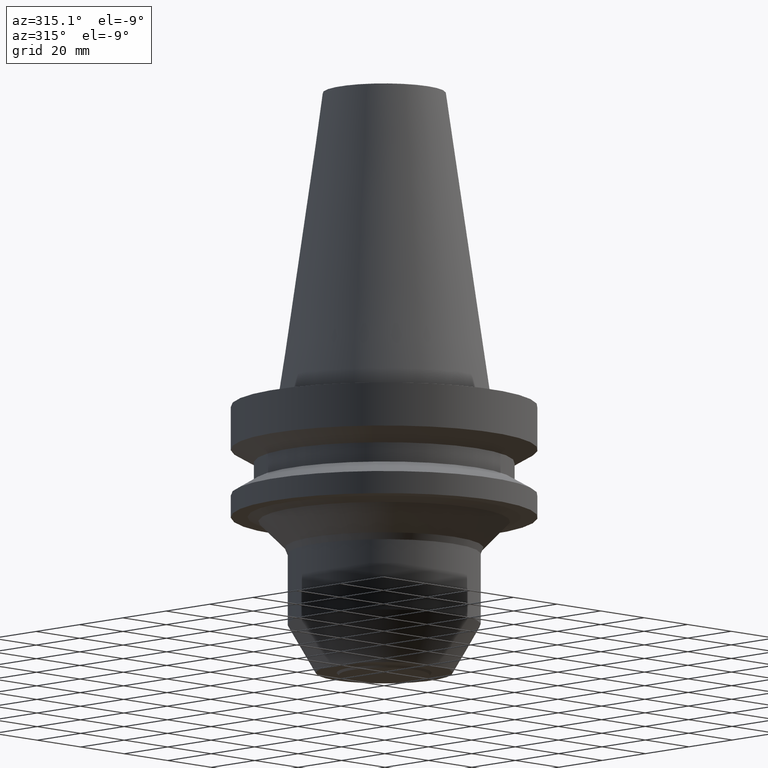
[diagram: clean part render]
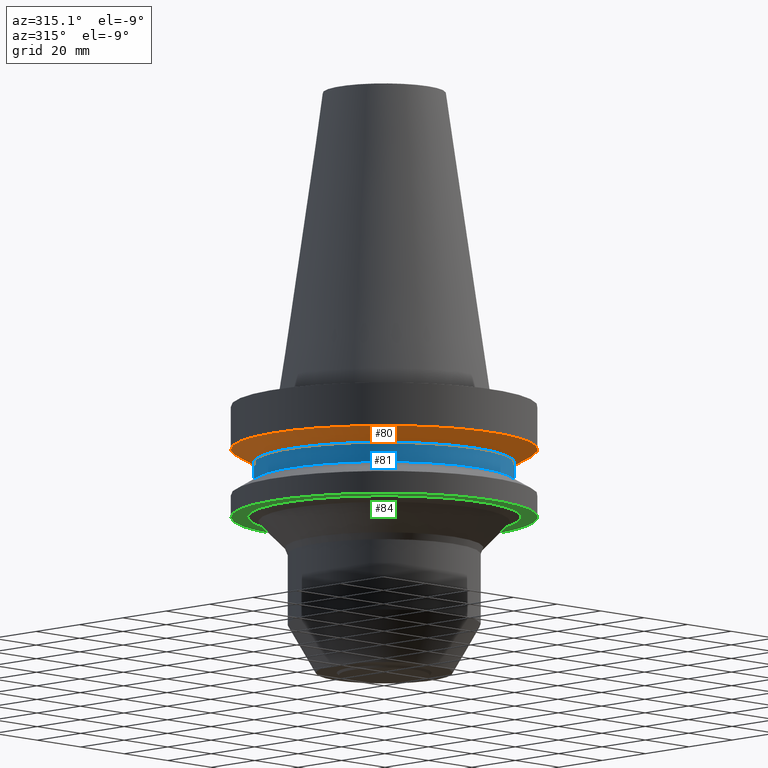
[diagram: same view with three faces highlighted in distinct colors, each labeled with its STEP entity id]
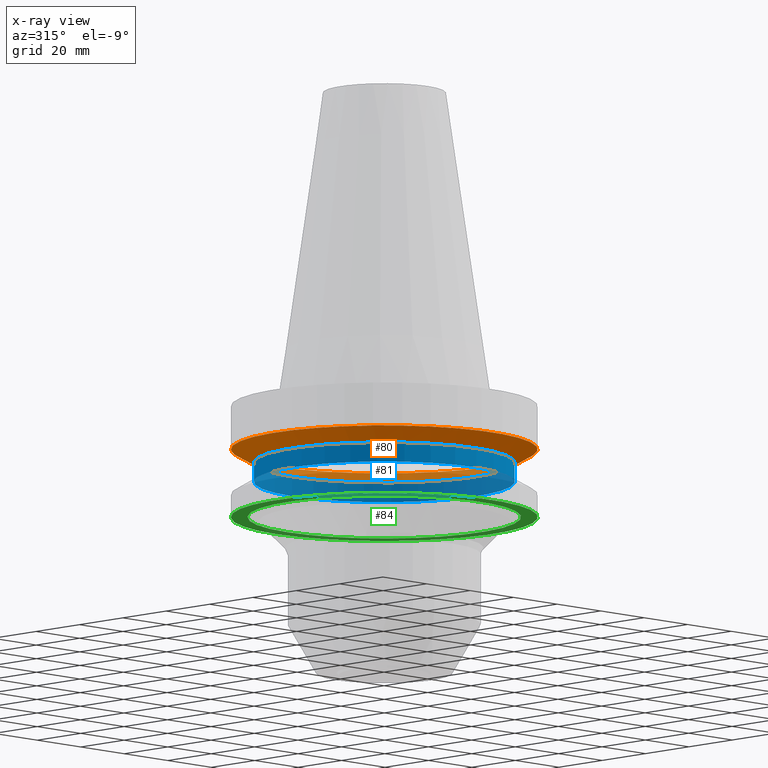
[diagram: x-ray of the same camera — body ghosted, the three highlighted faces saturated]
A machine part, auxiliary view with three faces highlighted in distinct colors.
The next image is the same camera in x-ray (body ghosted, the three faces saturated) — at least one of them is partly hidden behind the body in this view.
Their STEP definitions:

[orange] entity #80 — the highlighted conical surface has half-angle 60 deg.
#80=ADVANCED_FACE('',(#108,#109),#110,.T.);
#108=FACE_BOUND('',#160,.T.);
#109=FACE_BOUND('',#161,.T.);
#110=CONICAL_SURFACE('',#162,46.25,1.0471975511966);
#160=EDGE_LOOP('',(#222));
#161=EDGE_LOOP('',(#223));
#162=AXIS2_PLACEMENT_3D('',#224,#225,#226);
#222=ORIENTED_EDGE('',*,*,#291,.F.);
#223=ORIENTED_EDGE('',*,*,#290,.T.);
#224=CARTESIAN_POINT('',(1.09391964217128E-015,6.73835659639673E-015,-17.8650635094611));
#225=DIRECTION('',(-6.12323399573677E-017,-6.14340833658255E-017,1.0));
#226=DIRECTION('',(-8.58890540839591E-033,1.0,6.14340833658255E-017));
#290=EDGE_CURVE('',#311,#311,#312,.T.);
#291=EDGE_CURVE('',#313,#313,#314,.T.);
#311=VERTEX_POINT('',#345);
#312=CIRCLE('',#346,50.0);
#313=VERTEX_POINT('',#347);
#314=CIRCLE('',#348,42.5);
#345=CARTESIAN_POINT('',(9.61347737330669E-016,50.0,-15.7));
#346=AXIS2_PLACEMENT_3D('',#383,#384,#385);
#347=CARTESIAN_POINT('',(1.2264915470119E-015,42.5,-20.0301270189222));
#348=AXIS2_PLACEMENT_3D('',#386,#387,#388);
#383=CARTESIAN_POINT('',(9.6134773733067E-016,6.60534790426407E-015,-15.7));
#384=DIRECTION('',(6.12323399573677E-017,6.14340833658324E-017,-1.0));
#385=DIRECTION('',(-8.58890540840134E-033,1.0,6.14340833658324E-017));
#386=CARTESIAN_POINT('',(1.2264915470119E-015,6.87136528852939E-015,-20.0301270189222));
#387=DIRECTION('',(6.12323399573677E-017,6.14340833658172E-017,-1.0));
#388=DIRECTION('',(-8.58890540838952E-033,1.0,6.14340833658172E-017));

[blue] entity #81 — the highlighted cylindrical surface (bore or boss wall) has radius 42.5 mm, axis along (-0, -0, 1).
#81=ADVANCED_FACE('',(#111,#112),#113,.T.);
#111=FACE_BOUND('',#163,.T.);
#112=FACE_BOUND('',#164,.T.);
#113=CYLINDRICAL_SURFACE('',#165,42.5);
#163=EDGE_LOOP('',(#227));
#164=EDGE_LOOP('',(#228));
#165=AXIS2_PLACEMENT_3D('',#229,#230,#231);
#227=ORIENTED_EDGE('',*,*,#292,.F.);
#228=ORIENTED_EDGE('',*,*,#291,.T.);
#229=CARTESIAN_POINT('',(1.42059028701093E-015,7.06610352950818E-015,-23.2));
#230=DIRECTION('',(-6.12323399573677E-017,-6.14340833658172E-017,1.0));
#231=DIRECTION('',(-8.58890540838952E-033,1.0,6.14340833658172E-017));
#291=EDGE_CURVE('',#313,#313,#314,.T.);
#292=EDGE_CURVE('',#315,#315,#316,.T.);
#313=VERTEX_POINT('',#347);
#314=CIRCLE('',#348,42.5);
#315=VERTEX_POINT('',#349);
#316=CIRCLE('',#350,42.5);
#347=CARTESIAN_POINT('',(1.2264915470119E-015,42.5,-20.0301270189222));
#348=AXIS2_PLACEMENT_3D('',#386,#387,#388);
#349=CARTESIAN_POINT('',(1.61468902700996E-015,42.5,-26.3698729810777));
#350=AXIS2_PLACEMENT_3D('',#389,#390,#391);
#386=CARTESIAN_POINT('',(1.2264915470119E-015,6.87136528852939E-015,-20.0301270189222));
#387=DIRECTION('',(6.12323399573677E-017,6.14340833658172E-017,-1.0));
#388=DIRECTION('',(-8.58890540838952E-033,1.0,6.14340833658172E-017));
#389=CARTESIAN_POINT('',(1.61468902700996E-015,7.26084177048696E-015,-26.3698729810777));
#390=DIRECTION('',(6.12323399573677E-017,6.14340833658172E-017,-1.0));
#391=DIRECTION('',(-8.58890540838952E-033,1.0,6.14340833658172E-017));

[green] entity #84 — the highlighted planar face has unit normal (0, 0, -1).
#84=ADVANCED_FACE('',(#120,#121),#122,.T.);
#120=FACE_BOUND('',#172,.T.);
#121=FACE_OUTER_BOUND('',#173,.T.);
#122=PLANE('',#174);
#172=EDGE_LOOP('',(#242));
#173=EDGE_LOOP('',(#243));
#174=AXIS2_PLACEMENT_3D('',#244,#245,#246);
#242=ORIENTED_EDGE('',*,*,#295,.F.);
#243=ORIENTED_EDGE('',*,*,#294,.T.);
#244=CARTESIAN_POINT('',(2.32682891837997E-015,47.2855339059319,-38.0));
#245=DIRECTION('',(6.12323399573677E-017,1.19017324994974E-014,-1.0));
#246=DIRECTION('',(-7.33598083221643E-031,1.0,1.19017324994974E-014));
#294=EDGE_CURVE('',#319,#319,#320,.T.);
#295=EDGE_CURVE('',#321,#321,#322,.T.);
#319=VERTEX_POINT('',#353);
#320=CIRCLE('',#354,50.0);
#321=VERTEX_POINT('',#355);
#322=CIRCLE('',#356,44.5710678118638);
#353=CARTESIAN_POINT('',(2.32682891837997E-015,50.0000000000001,-38.0));
#354=AXIS2_PLACEMENT_3D('',#395,#396,#397);
#355=CARTESIAN_POINT('',(2.32682891837997E-015,44.5710678118639,-38.0));
#356=AXIS2_PLACEMENT_3D('',#398,#399,#400);
#395=CARTESIAN_POINT('',(2.32682891837997E-015,7.97532796332322E-015,-38.0));
#396=DIRECTION('',(6.12323399573677E-017,6.14340833658324E-017,-1.0));
#397=DIRECTION('',(-8.58890540840134E-033,1.0,6.14340833658324E-017));
#398=CARTESIAN_POINT('',(2.32682891837997E-015,7.97532796332322E-015,-38.0000000000001));
#399=DIRECTION('',(6.12323399573677E-017,6.1434083365947E-017,-1.0));
#400=DIRECTION('',(-8.58890540840376E-033,1.0,6.1434083365947E-017));